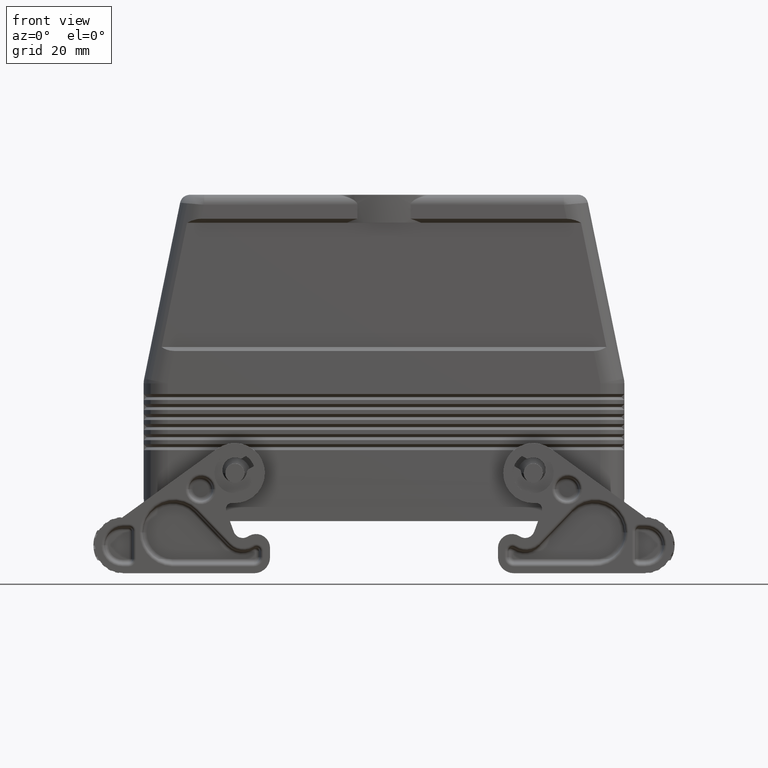
[diagram: clean part render]
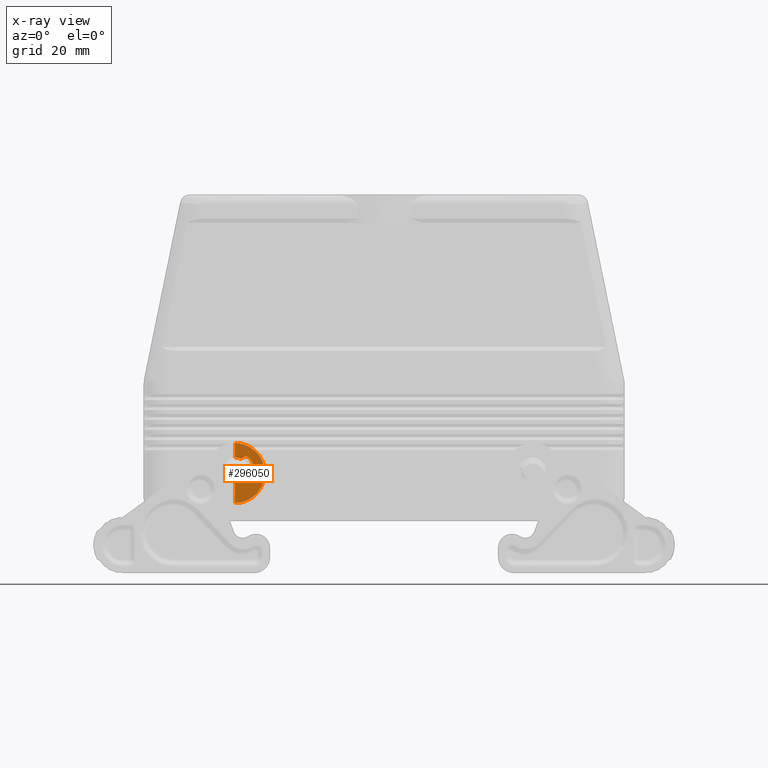
[diagram: x-ray — body ghosted, one internal face saturated and labeled with its STEP entity id]
A machine part, front view, then the same camera in x-ray: the body is ghosted and one INTERNAL B-rep face — a face not visible from any outside direction — is saturated and labeled: STEP entity #296050.
In plain terms, the highlighted planar face has unit normal (-0.342, 0.9397, 0).
Its self-contained STEP definition (entity closure, byte-faithful):
#132310=CARTESIAN_POINT('',(-37.25,23.5001819851172,11.5));
#132320=DIRECTION('',(-0.342020143325668,0.939692620785909,
3.87706923483836E-14));
#132330=DIRECTION('',(-0.939692620785909,-0.342020143325668,
1.06521601763806E-13));
#132340=AXIS2_PLACEMENT_3D('',#132310,#132320,#132330);
#132350=ELLIPSE('',#132340,2.55402665394219,2.4);
#132360=CARTESIAN_POINT('',(-35.9315663575461,23.9800525868256,
9.49457417727664));
#132370=VERTEX_POINT('',#132360);
#132380=CARTESIAN_POINT('',(-37.2505000000004,23.5,9.10000005208333));
#132390=VERTEX_POINT('',#132380);
#132400=EDGE_CURVE('',#132370,#132390,#132350,.T.);
#294460=CARTESIAN_POINT('',(-34.1657490270828,24.6227575342656,
11.9928983310276));
#294470=VERTEX_POINT('',#294460);
#294500=CARTESIAN_POINT('',(-37.2505,23.5,12.3));
#294510=DIRECTION('',(-0.342020143325668,0.939692620785909,
3.87706923483836E-14));
#294520=DIRECTION('',(-0.939692620785909,-0.342020143325668,
1.0700851300849E-13));
#294530=AXIS2_PLACEMENT_3D('',#294500,#294510,#294520);
#294540=ELLIPSE('',#294530,3.29895109467533,3.1);
#294550=EDGE_CURVE('',#294470,#132370,#294540,.T.);
#294730=CARTESIAN_POINT('',(-33.6682085475799,24.8038474591472,
11.943365803774));
#294740=DIRECTION('',(-0.342020143325668,0.939692620785909,
3.87706923483836E-14));
#294750=DIRECTION('',(-0.939692620785909,-0.342020143325668,
1.0700851300849E-13));
#294760=AXIS2_PLACEMENT_3D('',#294730,#294740,#294750);
#294770=ELLIPSE('',#294760,0.532088886237956,0.5);
#294780=CARTESIAN_POINT('',(-33.91820854758,24.7128549005806,
12.3763785056663));
#294790=VERTEX_POINT('',#294780);
#294800=EDGE_CURVE('',#294470,#294790,#294770,.T.);
#295080=CARTESIAN_POINT('',(-24.709688557875,28.0644820784781,
22.2500024000001));
#295090=DIRECTION('',(-0.342020143325669,0.939692620785909,
3.87706923483836E-14));
#295100=DIRECTION('',(-0.939692620785908,-0.342020143325668,
1.07060676427674E-13));
#295110=AXIS2_PLACEMENT_3D('',#295080,#295090,#295100);
#295120=PLANE('',#295110);
#295130=ORIENTED_EDGE('',*,*,#294550,.T.);
#295140=ORIENTED_EDGE('',*,*,#294800,.F.);
#295150=CARTESIAN_POINT('',(299.112423982439,145.926092240345,
204.651703845264));
#295160=DIRECTION('',(-0.825964736070561,-0.300626578483204,
-0.476870962711477));
#295170=VECTOR('',#295160,1.);
#295180=LINE('',#295150,#295170);
#295190=CARTESIAN_POINT('',(-32.597812320506,25.1934398246729,
13.1387096228044));
#295200=VERTEX_POINT('',#295190);
#295210=EDGE_CURVE('',#295200,#294790,#295180,.T.);
#295220=ORIENTED_EDGE('',*,*,#295210,.T.);
#295230=CARTESIAN_POINT('',(-32.697812320506,25.1570428012463,
13.3119147035613));
#295240=DIRECTION('',(-0.342020143325668,0.939692620785909,
3.87706923483836E-14));
#295250=DIRECTION('',(-0.939692620785909,-0.342020143325668,
1.06905418957241E-13));
#295260=AXIS2_PLACEMENT_3D('',#295230,#295240,#295250);
#295270=ELLIPSE('',#295260,0.212835554495182,0.2);
#295280=CARTESIAN_POINT('',(-32.5119883335879,25.2246772012972,
13.3858704057475));
#295290=VERTEX_POINT('',#295280);
#295300=EDGE_CURVE('',#295290,#295200,#295270,.T.);
#295310=ORIENTED_EDGE('',*,*,#295300,.T.);
#295320=CARTESIAN_POINT('',(-37.2505000000002,23.5,11.5));
#295330=DIRECTION('',(-0.342020143325668,0.939692620785909,
3.87706923483836E-14));
#295340=DIRECTION('',(-0.939692620785909,-0.342020143325668,
1.06905418957241E-13));
#295350=AXIS2_PLACEMENT_3D('',#295320,#295330,#295340);
#295360=ELLIPSE('',#295350,5.42730663962715,5.1);
#295370=CARTESIAN_POINT('',(-34.3460074067981,24.557148849572,
15.6921262834073));
#295380=VERTEX_POINT('',#295370);
#295390=EDGE_CURVE('',#295380,#295290,#295360,.T.);
#295400=ORIENTED_EDGE('',*,*,#295390,.T.);
#295410=CARTESIAN_POINT('',(-34.4599090771197,24.5156920319418,
15.5277291742541));
#295420=DIRECTION('',(-0.342020143325668,0.939692620785909,
3.87706923483836E-14));
#295430=DIRECTION('',(-0.939692620785909,-0.342020143325668,
1.06905418957241E-13));
#295440=AXIS2_PLACEMENT_3D('',#295410,#295420,#295430);
#295450=ELLIPSE('',#295440,0.212835554495182,0.2);
#295460=CARTESIAN_POINT('',(-34.4599090771197,24.5156920319418,
15.7277291742541));
#295470=VERTEX_POINT('',#295460);
#295480=EDGE_CURVE('',#295470,#295380,#295450,.T.);
#295490=ORIENTED_EDGE('',*,*,#295480,.T.);
#295500=CARTESIAN_POINT('',(-34.5599090771198,24.4792950085151,
15.7009342550109));
#295510=VERTEX_POINT('',#295500);
#295520=EDGE_CURVE('',#295510,#295470,#295450,.T.);
#295530=ORIENTED_EDGE('',*,*,#295520,.T.);
#295540=CARTESIAN_POINT('',(299.112423982439,145.926092240345,
208.346745568077));
#295550=DIRECTION('',(0.825964736070561,0.300626578483204,
0.476870962711476));
#295560=VECTOR('',#295550,1.);
#295570=LINE('',#295540,#295560);
#295580=CARTESIAN_POINT('',(-35.51820854758,24.1305025257546,
15.1476597977764));
#295590=VERTEX_POINT('',#295580);
#295600=EDGE_CURVE('',#295590,#295510,#295570,.T.);
#295610=ORIENTED_EDGE('',*,*,#295600,.T.);
#295620=CARTESIAN_POINT('',(-35.76820854758,24.039509967188,
15.5806724996687));
#295630=DIRECTION('',(-0.342020143325668,0.939692620785909,
3.87706923483836E-14));
#295640=DIRECTION('',(-0.939692620785909,-0.342020143325668,
1.0700851300849E-13));
#295650=AXIS2_PLACEMENT_3D('',#295620,#295630,#295640);
#295660=ELLIPSE('',#295650,0.532088886237956,0.5);
#295670=CARTESIAN_POINT('',(-35.9740823604161,23.9645780273008,
15.1250235413813));
#295680=VERTEX_POINT('',#295670);
#295690=EDGE_CURVE('',#295590,#295680,#295660,.T.);
#295700=ORIENTED_EDGE('',*,*,#295690,.F.);
#295710=CARTESIAN_POINT('',(-37.2504999999997,23.5,15.4000000000001));
#295720=VERTEX_POINT('',#295710);
#295730=EDGE_CURVE('',#295720,#295680,#294540,.T.);
#295740=ORIENTED_EDGE('',*,*,#295730,.T.);
#295750=CARTESIAN_POINT('',(-37.2505000000153,23.5,-122.032226182515));
#295760=DIRECTION('',(-1.13718591069974E-13,-1.31273211509256E-16,-1.));
#295770=VECTOR('',#295760,1.);
#295780=LINE('',#295750,#295770);
#295790=CARTESIAN_POINT('',(-37.2504999999993,23.5,19.));
#295800=VERTEX_POINT('',#295790);
#295810=EDGE_CURVE('',#295800,#295720,#295780,.T.);
#295820=ORIENTED_EDGE('',*,*,#295810,.T.);
#295830=CARTESIAN_POINT('',(-37.2505,23.5000000000001,11.5));
#295840=DIRECTION('',(0.342020143325669,-0.939692620785909,
-3.87706923483836E-14));
#295850=DIRECTION('',(-0.939692620785909,-0.342020143325669,
1.06908019039971E-13));
#295860=AXIS2_PLACEMENT_3D('',#295830,#295840,#295850);
#295870=ELLIPSE('',#295860,7.98133329356934,7.5);
#295880=CARTESIAN_POINT('',(-29.7505,26.2297767569966,11.5));
#295890=VERTEX_POINT('',#295880);
#295900=EDGE_CURVE('',#295890,#295800,#295870,.T.);
#295910=ORIENTED_EDGE('',*,*,#295900,.T.);
#295920=CARTESIAN_POINT('',(-37.250500000001,23.5,3.99999999999999));
#295930=VERTEX_POINT('',#295920);
#295940=EDGE_CURVE('',#295930,#295890,#295870,.T.);
#295950=ORIENTED_EDGE('',*,*,#295940,.T.);
#295960=CARTESIAN_POINT('',(-37.2505000000153,23.5,-122.032226182515));
#295970=DIRECTION('',(-1.13718591069974E-13,-1.31273211509256E-16,-1.));
#295980=VECTOR('',#295970,1.);
#295990=LINE('',#295960,#295980);
#296000=EDGE_CURVE('',#132390,#295930,#295990,.T.);
#296010=ORIENTED_EDGE('',*,*,#296000,.T.);
#296020=ORIENTED_EDGE('',*,*,#132400,.T.);
#296030=EDGE_LOOP('',(#296020,#296010,#295950,#295910,#295820,#295740,
#295700,#295610,#295530,#295490,#295400,#295310,#295220,#295140,#295130)
);
#296040=FACE_OUTER_BOUND('',#296030,.T.);
#296050=ADVANCED_FACE('',(#296040),#295120,.F.);